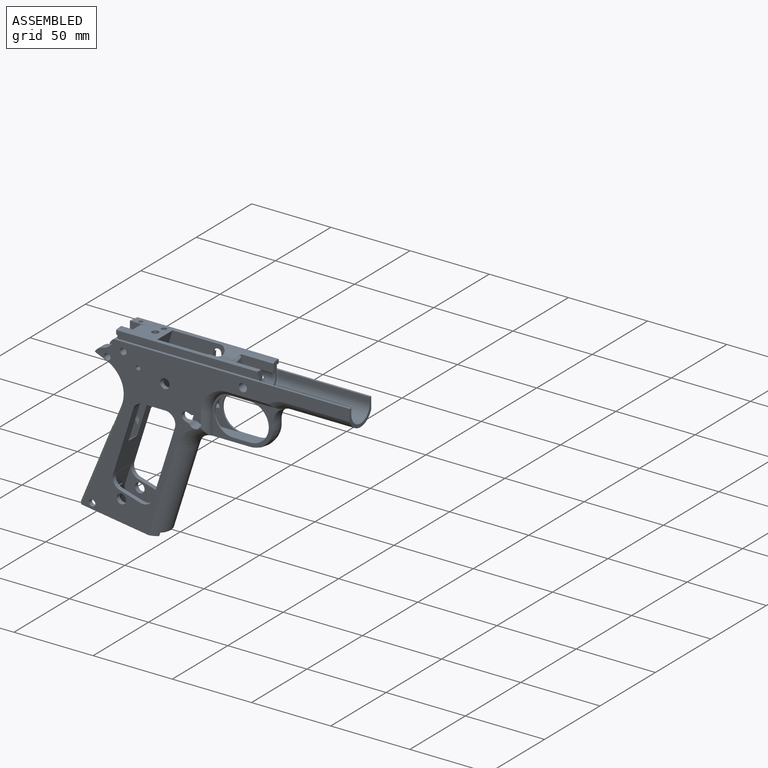
[diagram: assembled view]
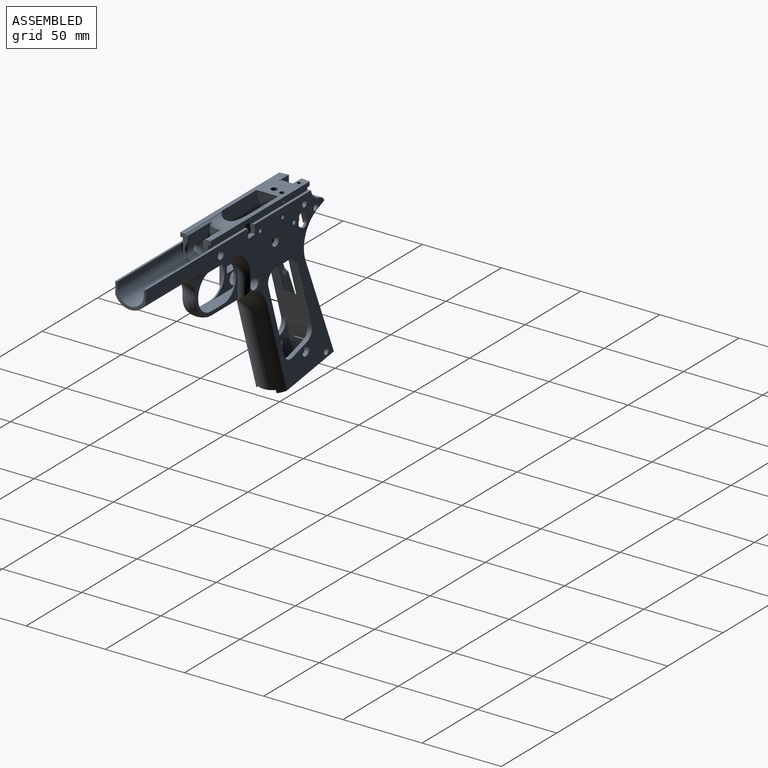
[diagram: assembled view, second angle]
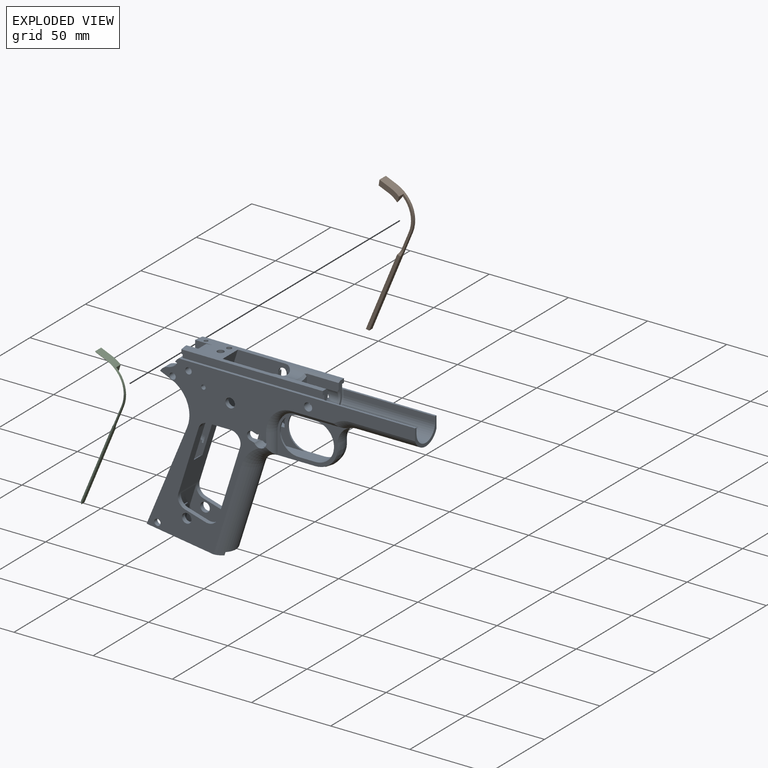
[diagram: exploded view]
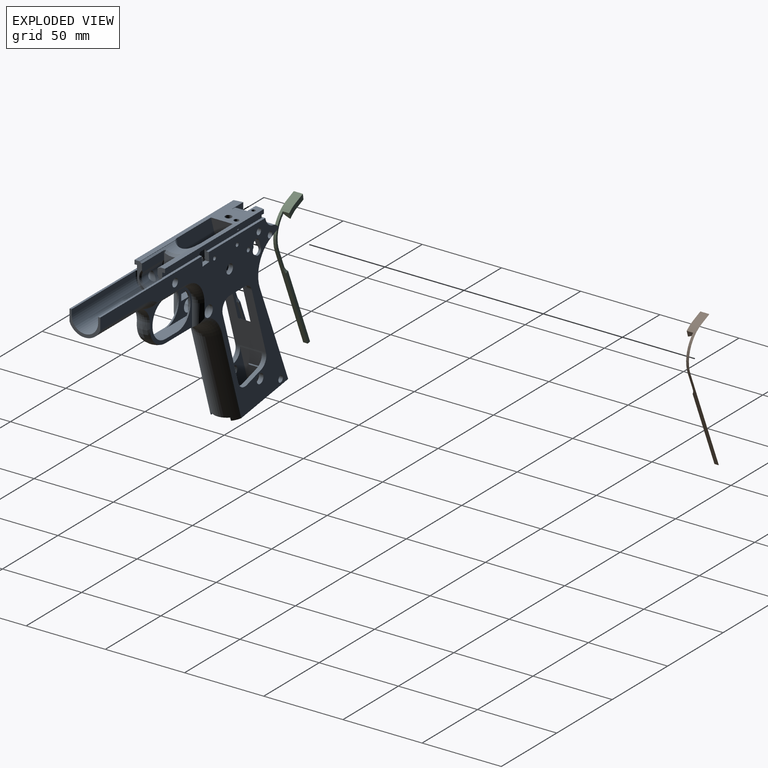
[diagram: exploded view, second angle]
ASSEMBLY  parts=3 mates=2
PART A: 207 faces, bbox 169.7x21.1x114.2 mm
  f0: plane 16.49x7.6mm, normal (1,0,0), area 34mm2, adj f1,f2,f60,f70,f110,f135,f136,f140
  f1: plane 90.1x19.31mm, normal (0,0,1), area 755.1mm2, adj f0,f3,f16,f17,f90,f92,f114,f115
  f2: plane 89.53x1.56mm, normal (0,0,-1), area 139.6mm2, adj f0,f3,f110,f206
  f3: cylinder r=50.8mm len=5.6mm, axis (0,0,1), area 26.7mm2, adj f1,f2,f17,f70,f110,f206
  f4: plane 47.99x22.35mm, normal (0,1,0), area 239mm2, adj f40,f63,f108,f181,f195
  f5: plane 47.63x21.1mm, normal (0,1,0), area 65.4mm2, adj f13,f63,f183,f195
  f6: plane 47.99x22.35mm, normal (0,-1,0), area 239mm2, adj f40,f63,f74,f179,f199
  f7: plane 47.63x21.1mm, normal (0,-1,0), area 65.4mm2, adj f11,f63,f177,f199
  f8: cylinder r=19.05mm len=24.85mm, axis (0,1,0), area 77.7mm2, adj f13,f17,f34,f55,f196,f197
  f9: cylinder r=1.4mm len=5.74mm, axis (0,1,0), area 46.8mm2, adj f17,f34,f198
  f10: cylinder r=19.05mm len=24.85mm, axis (0,1,0), area 77mm2, adj f11,f16,f24,f26,f29,f95,f175,f200
  f11: plane 61.79x25.6mm, normal (-0.92,0,0.38), area 171.6mm2, adj f7,f10,f29,f63,f199,f200
  f12: cylinder r=2.67mm len=4.76mm, axis (0,1,0), area 11.4mm2, adj f24,f29,f35,f113,f175,f204
  f13: plane 61.79x25.6mm, normal (-0.92,0,0.38), area 171.6mm2, adj f5,f8,f34,f63,f195,f196
  f14: cylinder r=1.4mm len=5.74mm, axis (0,1,0), area 46.8mm2, adj f16,f29,f202
  f15: cylinder r=2.67mm len=5.74mm, axis (0,1,0), area 33.5mm2, adj f16,f29,f35,f113,f175,f176,f204
  f16: plane 32.55x28.59mm, normal (0,-1,0), area 322.8mm2, adj f1,f10,f14,f15,f22,f25,f51,f73
  f17: plane 32.55x28.59mm, normal (0,1,0), area 333.1mm2, adj f1,f3,f8,f9,f18,f41,f51,f53
  f18: plane 48.79x5.1mm, normal (0,0,-1), area 77.3mm2, adj f17,f20,f41,f48,f114,f115,f116,f151
  f19: plane 48.79x5.1mm, normal (0,0,1), area 86.2mm2, adj f20,f40,f42,f44,f45,f48,f50,f151
  f20: plane 5.92x0.19mm, normal (1,0,0), area 1.1mm2, adj f18,f19,f153,f196
  f21: plane 48.83x5.14mm, normal (0,0,1), area 87.5mm2, adj f23,f39,f40,f43,f46,f47,f49,f155
  f22: plane 47.76x5.14mm, normal (0,0,-1), area 78.4mm2, adj f16,f25,f47,f73,f114,f116,f117,f155
  f23: plane 5.35x0.19mm, normal (1,0,0), area 1mm2, adj f21,f26,f156,f200
  f24: plane 3.87x1.22mm, normal (0.95,0,-0.3), area 0.8mm2, adj f10,f12,f175,f204,f205
  f25: plane 13.04x4.22mm, normal (-0.95,0,0.3), area 15.7mm2, adj f16,f22,f26,f156,f175,f176,f201,f202
  f26: plane 5.18x1.63mm, normal (0.3,0,0.95), area 0.9mm2, adj f10,f23,f25,f156,f175,f200
  f27: torus R=24.64mm, axis (0,-1,0), area 482.7mm2, adj f28,f29,f31,f33,f34,f130,f165,f186
  f28: cylinder r=10.41mm len=23.03mm, axis (-1,0,0), area 194.9mm2, adj f27,f129,f188,f190
  f29: plane 169.51x105.97mm, normal (0,1,0), area 3951.9mm2, adj f10,f11,f12,f14,f15,f27,f35,f62
  f30: cylinder r=11.73mm len=23.47mm, axis (0,1,0), area 34.7mm2, adj f47,f66,f96,f190,f192
  f31: cylinder r=3.98mm len=7.95mm, axis (0,1,0), area 108mm2, adj f27,f33,f34,f39,f45,f48,f159,f160
  f32: cylinder r=11.73mm len=23.47mm, axis (0,1,0), area 34.7mm2, adj f48,f66,f96,f188,f189
  f33: plane 1.82x1.07mm, normal (0,-1,0), area 0.6mm2, adj f27,f31,f186
  f34: plane 169.51x105.97mm, normal (0,-1,0), area 4020.2mm2, adj f8,f9,f13,f27,f31,f52,f53,f54
  f35: cylinder r=3.2mm len=5.24mm, axis (0,1,0), area 10.3mm2, adj f12,f15,f29,f175
  f36: plane 1.36x1.2mm, normal (0,-1,0), area 0.8mm2, adj f131,f133,f174
  f37: plane 1.37x1.21mm, normal (0,1,0), area 0.8mm2, adj f131,f133,f174
  f38: plane 89.53x1.7mm, normal (0,0,-1), area 152.1mm2, adj f89,f90,f92,f170
  f39: extruded ~78.69x31.26mm, area 1461.8mm2, adj f21,f31,f44,f46,f47,f48,f63,f64
  f40: plane 72.36x22.68mm, normal (-0.95,0,0.3), area 831.2mm2, adj f4,f6,f19,f21,f49,f50,f63,f120
  f41: plane 9.61x4.01mm, normal (-0.95,0,0.3), area 32.7mm2, adj f17,f18,f196,f198
  f42: plane 6.58x2.93mm, normal (0.95,0,-0.3), area 20.2mm2, adj f19,f44,f50,f52
  f43: plane 6.58x2.93mm, normal (0.95,0,-0.3), area 20.2mm2, adj f21,f46,f49,f81
  f44: plane 77.04x54.13mm, normal (0,1,0), area 844.5mm2, adj f19,f39,f42,f45,f52,f63,f72,f75
  f45: extruded ~4.82x3.7mm, area 5.1mm2, adj f19,f31,f44,f48,f159,f161
  f46: plane 76.77x52.2mm, normal (0,-1,0), area 705.1mm2, adj f21,f39,f43,f63,f72,f75,f81,f97
  f47: plane 24.1x23.47mm, normal (0,-1,0), area 186.6mm2, adj f21,f22,f30,f39,f64,f66,f96,f116
  f48: plane 23.96x23.47mm, normal (0,1,0), area 185.2mm2, adj f18,f19,f31,f32,f39,f45,f66,f96
  f49: plane 30.94x11.51mm, normal (0,-1,0), area 53.2mm2, adj f21,f40,f43,f81,f102,f146
  f50: plane 30.94x11.51mm, normal (0,1,0), area 53.2mm2, adj f19,f40,f42,f52,f102,f146
  f51: cylinder r=38.1mm len=15.56mm, axis (0,-1,0), area 120.4mm2, adj f16,f17,f114,f147,f149
  f52: cylinder r=6.35mm len=6.06mm, axis (0,1,0), area 25.6mm2, adj f34,f42,f44,f50,f80,f102
  f53: cylinder r=8.76mm len=7.2mm, axis (0,1,0), area 60.2mm2, adj f17,f34,f54,f70
  f54: cylinder r=6.86mm len=5.74mm, axis (0,1,0), area 35.8mm2, adj f17,f34,f53,f55
  f55: plane 6.87x5.74mm, normal (-0.39,0,-0.92), area 42.8mm2, adj f8,f17,f34,f54
  f56: cylinder r=2mm len=5.74mm, axis (0,1,0), area 72.1mm2, adj f17,f34
  f57: cylinder r=1.98mm len=5.74mm, axis (0,1,0), area 71.4mm2, adj f17,f34
  f58: cylinder r=5.7mm len=18.47mm, axis (-1,0,0), area 342.1mm2, adj f60,f61,f62,f132,f137,f139,f140,f141
  f59: plane 2.77x0.13mm, normal (1,0,0), area 0.2mm2, adj f135,f138
  f60: cone r=5.7mm half-angle=45deg, axis (1,0,0), area 14.5mm2, adj f0,f58,f140,f171
  f61: cylinder r=2.55mm len=6.66mm, axis (0,1,0), area 78.1mm2, adj f34,f58
  f62: cylinder r=2.55mm len=6.66mm, axis (0,1,0), area 78.1mm2, adj f29,f58
  f63: plane 46.88x19.43mm, normal (-0.15,0,-0.99), area 276.8mm2, adj f4,f5,f6,f7,f11,f13,f29,f34
  f64: cylinder r=3.98mm len=7.95mm, axis (0,1,0), area 105.4mm2, adj f39,f47,f167
  f65: cylinder r=11.73mm len=23.47mm, axis (0,1,0), area 303.5mm2, adj f66,f96,f188,f190
  f66: plane 34.87x8.23mm, normal (0,0,1), area 237.9mm2, adj f30,f32,f39,f47,f48,f65,f188,f190
  f67: cylinder r=7.53mm len=2.14mm, axis (0.3,0,0.95), area 0.3mm2, adj f63,f69,f119,f130
  f68: cylinder r=6.53mm len=2.13mm, axis (0.3,0,0.95), area 0.3mm2, adj f63,f69,f118,f130
  f69: plane 12.66x5.64mm, normal (-0.15,0,-0.99), area 23.3mm2, adj f39,f67,f68,f118,f119,f130
  f70: plane 148.88x5.74mm, normal (0,0,1), area 233.9mm2, adj f0,f3,f17,f34,f53,f71,f110,f124
  f71: plane 19.36x14mm, normal (1,0,0), area 66.3mm2, adj f29,f34,f70,f88,f124,f125,f126,f127
  f72: plane 23.43x13.74mm, normal (0.95,0,-0.3), area 330.1mm2, adj f44,f46,f63,f75,f120,f121,f122,f123
  f73: plane 9.61x4.01mm, normal (-0.95,0,0.3), area 32.7mm2, adj f16,f22,f201,f202
  f74: cylinder r=1.99mm len=3.99mm, axis (0,1,0), area 35mm2, adj f6,f29
  f75: cylinder r=6.35mm len=19.35mm, axis (0,1,0), area 70.8mm2, adj f29,f34,f44,f46,f72,f76,f97,f102
  f76: plane 12.94x3.81mm, normal (0.28,0,0.96), area 37.9mm2, adj f34,f44,f75,f77
  f77: cylinder r=6.35mm len=7.85mm, axis (0,1,0), area 27.7mm2, adj f34,f44,f76,f78
  f78: plane 44.45x13.93mm, normal (-0.95,0,0.3), area 130.7mm2, adj f34,f44,f77,f79
  f79: cylinder r=6.35mm len=8.25mm, axis (0,1,0), area 33.4mm2, adj f34,f44,f78,f80
  f80: plane 14.13x2.81mm, normal (0,0,-1), area 39.7mm2, adj f34,f44,f52,f79
  f81: cylinder r=6.35mm len=6.06mm, axis (0,1,0), area 25.6mm2, adj f29,f43,f46,f49,f101,f102
  f82: cylinder r=3mm len=5.99mm, axis (0,1,0), area 52.9mm2, adj f34,f115
  f83: cylinder r=3mm len=5.99mm, axis (0,1,0), area 52.9mm2, adj f34,f44
  f84: plane 5.53x4.9mm, normal (0.07,0,1), area 18.7mm2, adj f29,f85,f111,f116,f117
  f85: cylinder r=0.25mm len=5.07mm, axis (0,1,0), area 2mm2, adj f29,f84,f86,f116
  f86: plane 5.57x5.16mm, normal (-1,0,0.07), area 24.6mm2, adj f29,f85,f87,f116
  f87: cylinder r=3.01mm len=6.01mm, axis (0,1,0), area 13.5mm2, adj f29,f86,f88,f89,f112,f116,f117
  f88: plane 91.9x2.08mm, normal (0,0,1), area 134.3mm2, adj f29,f71,f87,f89,f92,f125,f134
  f89: plane 89.53x3.02mm, normal (0,1,0), area 255.5mm2, adj f38,f87,f88,f91,f92,f112,f168,f170
  f90: plane 89.23x2.54mm, normal (0,1,0), area 226.6mm2, adj f1,f38,f92,f170
  f91: plane 50.96x5.74mm, normal (0,0,1), area 89.4mm2, adj f16,f29,f89,f93,f112,f170
  f92: plane 16.49x7.74mm, normal (1,0,0), area 34.3mm2, adj f1,f38,f88,f89,f90,f132,f134,f135
  f93: cylinder r=8.76mm len=7.2mm, axis (0,1,0), area 60.2mm2, adj f16,f29,f91,f94
  f94: cylinder r=6.86mm len=5.74mm, axis (0,1,0), area 35.8mm2, adj f16,f29,f93,f95
  f95: plane 6.87x5.74mm, normal (-0.39,0,-0.92), area 42.8mm2, adj f10,f16,f29,f94
  f96: plane 27.51x8.23mm, normal (0,0,-1), area 191.2mm2, adj f30,f32,f47,f48,f65,f116,f188,f190
  f97: plane 12.94x3.81mm, normal (0.28,0,0.96), area 37.9mm2, adj f29,f46,f75,f98
  f98: cylinder r=6.35mm len=7.85mm, axis (0,1,0), area 27.7mm2, adj f29,f46,f97,f99
  f99: plane 44.45x13.93mm, normal (-0.95,0,0.3), area 130.7mm2, adj f29,f46,f98,f100
  f100: cylinder r=6.35mm len=8.25mm, axis (0,1,0), area 33.4mm2, adj f29,f46,f99,f101
  f101: plane 14.13x2.81mm, normal (0,0,-1), area 39.7mm2, adj f29,f46,f81,f100
  f102: plane 40.64x19.35mm, normal (0.95,0,-0.3), area 640.7mm2, adj f29,f34,f49,f50,f52,f75,f81,f146
  f103: cylinder r=2mm len=5.74mm, axis (0,1,0), area 72.1mm2, adj f16,f29
  f104: cylinder r=1.25mm len=2.81mm, axis (0,1,0), area 22.1mm2, adj f29,f117
  f105: cylinder r=1.25mm len=2.81mm, axis (0,1,0), area 22.1mm2, adj f29,f117
  f106: cylinder r=1.98mm len=5.74mm, axis (0,1,0), area 71.4mm2, adj f16,f29
  f107: cylinder r=3mm len=5.99mm, axis (0,1,0), area 52.9mm2, adj f29,f117
  f108: cylinder r=1.99mm len=3.99mm, axis (0,1,0), area 35mm2, adj f4,f34
  f109: cylinder r=3mm len=5.99mm, axis (0,1,0), area 52.9mm2, adj f29,f46
  f110: plane 89.53x3.02mm, normal (0,-1,0), area 270.6mm2, adj f0,f2,f3,f70
  f111: cylinder r=0.25mm len=2.81mm, axis (0,1,0), area 1.1mm2, adj f29,f84,f112,f117
  f112: plane 5.49x2.81mm, normal (1,0,-0.07), area 15.4mm2, adj f29,f87,f89,f91,f111,f117
  f113: plane 4.69x4.29mm, normal (0.95,0,-0.31), area 13mm2, adj f12,f15,f29,f204
  f114: plane 28.59x13.74mm, normal (0.95,0,-0.3), area 306.7mm2, adj f1,f16,f17,f18,f22,f51,f115,f117
  f115: plane 40.34x28.59mm, normal (0,1,0), area 868.8mm2, adj f1,f18,f82,f114,f116
  f116: extruded ~30.12x16.03mm, area 489.3mm2, adj f1,f18,f22,f47,f48,f84,f85,f86
  f117: plane 38.4x28.59mm, normal (0,-1,0), area 790.1mm2, adj f1,f22,f84,f87,f104,f105,f107,f111
  f118: plane 4.06x2.59mm, normal (0,-1,0), area 7.4mm2, adj f39,f63,f68,f69
  f119: plane 3.53x2.51mm, normal (0,1,0), area 6.3mm2, adj f39,f63,f67,f69
  f120: cylinder r=6.7mm len=2.04mm, axis (-0.3,0,-0.95), area 2.6mm2, adj f40,f72,f122,f123
  f121: cylinder r=6.7mm len=2.04mm, axis (-0.3,0,-0.95), area 2.6mm2, adj f40,f72,f122,f123
  f122: plane 10.95x1.77mm, normal (-0.15,0,-0.99), area 16.3mm2, adj f40,f72,f120,f121
  f123: plane 10.95x1.77mm, normal (0.15,0,0.99), area 16.3mm2, adj f40,f72,f120,f121
  f124: plane 57.66x3.58mm, normal (0,1,0), area 206.5mm2, adj f70,f71,f126,f136
  f125: plane 57.66x3.58mm, normal (0,-1,0), area 206.5mm2, adj f71,f88,f126,f134
  f126: cylinder r=8.36mm len=57.66mm, axis (1,0,0), area 1513.7mm2, adj f71,f124,f125,f135
  f127: cylinder r=10.41mm len=40.74mm, axis (1,0,0), area 1011.8mm2, adj f29,f34,f71,f128
  f128: torus R=21.59mm, axis (0,-1,0), area 299.5mm2, adj f29,f34,f127,f129,f187,f188,f190,f194
  f129: torus R=4.57mm, axis (0,1,0), area 206.2mm2, adj f28,f128,f188,f190
  f130: cylinder r=10.41mm len=57.55mm, axis (-0.3,0,-0.95), area 1401.1mm2, adj f27,f29,f34,f63,f67,f68,f69
  f131: plane 13.17x9.88mm, normal (1,0,0), area 99mm2, adj f36,f37,f133,f137,f171,f172,f174
  f132: cone r=5.7mm half-angle=45deg, axis (1,0,0), area 14.5mm2, adj f58,f92,f139,f172
  f133: cone r=10.36mm half-angle=45deg, axis (1,0,0), area 18.5mm2, adj f36,f37,f131,f174
  f134: cylinder r=0.76mm len=3.58mm, axis (0,0,-1), area 4.3mm2, adj f88,f92,f125,f135
  f135: torus R=7.59mm, axis (-1,0,0), area 30.3mm2, adj f0,f59,f92,f126,f134,f136,f138,f139
  f136: cylinder r=0.76mm len=3.58mm, axis (0,0,1), area 4.3mm2, adj f0,f70,f124,f135
  f137: torus R=4.94mm, axis (1,0,0), area 25.9mm2, adj f58,f131,f171,f172
  f138: plane 14.84x3.89mm, normal (0,0,1), area 55.9mm2, adj f59,f135,f139,f140,f141
  f139: plane 12.91x2.13mm, normal (0,-1,0), area 26.7mm2, adj f58,f92,f132,f135,f138,f141
  f140: plane 12.91x2.13mm, normal (0,1,0), area 26.7mm2, adj f0,f58,f60,f135,f138,f141
  f141: cylinder r=1.94mm len=3.88mm, axis (0,0,1), area 11.8mm2, adj f58,f138,f139,f140
  f142: cylinder r=1.58mm len=8.38mm, axis (0,0,1), area 81.3mm2, adj f1,f143,f168,f169
  f143: plane 3.16x3.16mm, normal (0,0,1), area 7.9mm2, adj f142
  f144: cylinder r=1.23mm len=3.18mm, axis (0,0,1), area 24.4mm2, adj f1,f145
  f145: plane 2.45x2.45mm, normal (0,0,1), area 4.7mm2, adj f144
  f146: cylinder r=38.1mm len=7.87mm, axis (0,-1,0), area 18.8mm2, adj f40,f49,f50,f102
  f147: plane 7.87x3.58mm, normal (-0.09,0,1), area 28.3mm2, adj f1,f16,f17,f51
  f148: cylinder r=2.08mm len=6.45mm, axis (-0.1,0,-0.99), area 76.2mm2, adj f1,f150
  f149: cylinder r=2.79mm len=10.39mm, axis (0.1,0,0.99), area 105.4mm2, adj f51,f114,f150
  f150: plane 5.59x5.56mm, normal (-0.1,0,-0.99), area 10.9mm2, adj f148,f149
  f151: plane 17.78x5.92mm, normal (0,1,0), area 105.2mm2, adj f18,f19,f152,f154
  f152: cylinder r=6.86mm len=5.92mm, axis (0,0,1), area 2.5mm2, adj f18,f19,f151,f153
  f153: plane 23.88x5.92mm, normal (0,1,0), area 141.3mm2, adj f18,f19,f20,f152
  f154: cylinder r=6.86mm len=6.6mm, axis (0,0,1), area 52.5mm2, adj f18,f19,f48,f151
  f155: cylinder r=6.86mm len=6.6mm, axis (0,0,1), area 52.5mm2, adj f21,f22,f47,f158
  f156: plane 23.88x5.92mm, normal (0,-1,0), area 140.6mm2, adj f21,f22,f23,f25,f26,f157
  f157: cylinder r=6.86mm len=5.92mm, axis (0,0,1), area 2.5mm2, adj f21,f22,f156,f158
  f158: plane 17.78x5.92mm, normal (0,-1,0), area 105.2mm2, adj f21,f22,f155,f157
  f159: plane 4.99x2.8mm, normal (-0.3,0,-0.95), area 10.9mm2, adj f31,f34,f45,f161
  f160: plane 4.98x2.8mm, normal (0.3,0,0.95), area 10.9mm2, adj f31,f34,f39,f161
  f161: cylinder r=2.74mm len=5.36mm, axis (0,-1,0), area 24.3mm2, adj f34,f39,f44,f45,f159,f160
  f162: cylinder r=3.81mm len=7.57mm, axis (0,-1,0), area 16.6mm2, adj f31,f163,f164
  f163: plane 7.57x5.48mm, normal (0,-1,0), area 12.1mm2, adj f31,f162
  f164: plane 7.57x5.48mm, normal (0,1,0), area 12.1mm2, adj f31,f162
  f165: cylinder r=3.98mm len=3.17mm, axis (0,-1,0), area 0.4mm2, adj f27,f29
  f166: cylinder r=3.64mm len=7.29mm, axis (0,-1,0), area 39.6mm2, adj f29,f167
  f167: plane 7.95x7.95mm, normal (0,-1,0), area 7.9mm2, adj f64,f166
  f168: cylinder r=0.79mm len=1.91mm, axis (0,1,0), area 7.3mm2, adj f89,f142,f169
  f169: plane 1.59x0.82mm, normal (0,1,0), area 1mm2, adj f142,f168
  f170: cylinder r=50.8mm len=5.74mm, axis (0,0,1), area 27mm2, adj f1,f16,f38,f89,f90,f91
  f171: plane 20.24x7.85mm, normal (0,1,0), area 107mm2, adj f0,f58,f60,f131,f137,f174
  f172: plane 20.24x7.84mm, normal (0,-1,0), area 106.9mm2, adj f58,f92,f131,f132,f137,f174
  f173: plane 32.07x0.21mm, normal (0,1,0), area 6.8mm2, adj f0,f1,f116,f174
  f174: cylinder r=11.63mm len=33.4mm, axis (1,0,0), area 188mm2, adj f0,f1,f36,f37,f92,f116,f131,f133
  f175: plane 14.51x10.97mm, normal (0,-1,0), area 50mm2, adj f10,f12,f15,f24,f25,f26,f35,f176
  f176: plane 4.22x4.11mm, normal (-0.34,0,-0.94), area 18.4mm2, adj f15,f16,f25,f175
  f177: plane 48.01x20.38mm, normal (0.92,0,-0.39), area 55.4mm2, adj f7,f63,f178,f180,f199
  f178: plane 1.9x0.81mm, normal (-0.39,0,-0.92), area 1.3mm2, adj f177,f179,f180,f199
  f179: plane 47.51x20.17mm, normal (-0.92,0,0.39), area 54.9mm2, adj f6,f63,f178,f180,f199
  f180: plane 48.32x22.27mm, normal (0,-1,0), area 106.7mm2, adj f63,f177,f178,f179
  f181: plane 47.51x20.17mm, normal (-0.92,0,0.39), area 54.9mm2, adj f4,f63,f182,f184,f195
  f182: plane 1.9x0.81mm, normal (-0.39,0,-0.92), area 1.3mm2, adj f181,f183,f184,f195
  f183: plane 48.01x20.38mm, normal (0.92,0,-0.39), area 55.4mm2, adj f5,f63,f182,f184,f195
  f184: plane 48.32x22.27mm, normal (0,1,0), area 106.7mm2, adj f63,f181,f182,f183
  f185: torus R=19.52mm, axis (0,-1,0), area 152.3mm2, adj f34,f186,f187,f189
  f186: cylinder r=6.35mm len=14.17mm, axis (0,0,-1), area 80.2mm2, adj f27,f31,f33,f34,f185,f188
  f187: cylinder r=6.35mm len=31.78mm, axis (1,0,0), area 196.4mm2, adj f34,f128,f185,f188
  f188: plane 44.95x27.33mm, normal (0,-1,0), area 266.5mm2, adj f27,f28,f32,f65,f66,f96,f128,f129
  f189: plane 13.17x13.17mm, normal (0,-1,0), area 28.1mm2, adj f32,f185,f188
  f190: plane 44.95x27.33mm, normal (0,1,0), area 266.5mm2, adj f27,f28,f30,f65,f66,f96,f128,f129
  f191: cylinder r=6.35mm len=14.17mm, axis (0,0,-1), area 80.4mm2, adj f27,f29,f190,f193
  f192: plane 13.17x13.17mm, normal (0,1,0), area 28.1mm2, adj f30,f190,f193
  f193: torus R=19.52mm, axis (0,-1,0), area 152.3mm2, adj f29,f191,f192,f194
  f194: cylinder r=6.35mm len=31.78mm, axis (1,0,0), area 196.4mm2, adj f29,f128,f190,f193
  f195: cylinder r=6.76mm len=6.95mm, axis (0.95,0,-0.3), area 21.1mm2, adj f4,f5,f13,f40,f181,f182,f183,f196
  f196: plane 35.47x15.42mm, normal (0,1,0), area 199.7mm2, adj f8,f13,f18,f19,f20,f40,f41,f195
  f197: plane 7.86x4.01mm, normal (0.95,0,-0.3), area 25.3mm2, adj f8,f17,f196,f198
  f198: cylinder r=7.62mm len=16.97mm, axis (0.95,0,-0.3), area 125.1mm2, adj f9,f17,f41,f196,f197
  f199: cylinder r=6.76mm len=6.95mm, axis (0.95,0,-0.3), area 21.1mm2, adj f6,f7,f11,f40,f177,f178,f179,f200
  f200: plane 28.39x12.33mm, normal (0,-1,0), area 132.4mm2, adj f10,f11,f21,f23,f26,f40,f199
  f201: plane 5.75x4.56mm, normal (0,-1,0), area 18.4mm2, adj f22,f25,f73,f202
  f202: cylinder r=7.62mm len=7.76mm, axis (0.95,0,-0.3), area 33.4mm2, adj f14,f16,f25,f73,f201
  f203: plane 7.86x4.01mm, normal (0.95,0,-0.3), area 25.3mm2, adj f10,f16,f204,f205
  f204: cylinder r=7.62mm len=7.47mm, axis (0.95,0,-0.3), area 27.4mm2, adj f12,f15,f16,f24,f113,f203,f205
  f205: plane 4.3x3.59mm, normal (0,-1,0), area 8mm2, adj f10,f24,f203,f204
  f206: plane 89.26x2.54mm, normal (0,-1,0), area 226.7mm2, adj f0,f1,f2,f3
PART B: 13 faces, bbox 29.3x5.8x90.1 mm
  f0: cylinder r=19.05mm len=24.85mm, axis (0,-1,0), area 77.7mm2, adj f1,f3,f6,f9,f10,f11
  f1: revolved ~24.85x12.2mm, area 92.6mm2, adj f0,f2,f7,f9,f10,f11
  f2: cylinder r=13.4mm len=63.1mm, axis (-0.38,0,-0.92), area 218.4mm2, adj f1,f3,f4,f5,f11,f12
  f3: plane 61.79x25.6mm, normal (0.92,0,-0.38), area 171.6mm2, adj f0,f2,f4,f5,f11,f12
  f4: plane 48.12x21.85mm, normal (0,-1,0), area 110.6mm2, adj f2,f3,f5,f12
  f5: plane 2.84x2.23mm, normal (-0.15,0,-0.99), area 3.4mm2, adj f2,f3,f4
  f6: plane 6.87x5.74mm, normal (0.39,0,0.92), area 42.8mm2, adj f0,f7,f8,f10
  f7: extruded ~7.4x6.36mm, area 50.3mm2, adj f1,f6,f8,f10
  f8: plane 5.74x3.48mm, normal (-0.99,0,0.15), area 12mm2, adj f6,f7,f10
  f9: plane 4.06x3.7mm, normal (0.95,0,-0.3), area 11.5mm2, adj f0,f1,f10,f11
  f10: plane 12.87x10.04mm, normal (0,-1,0), area 46.8mm2, adj f0,f1,f6,f7,f8,f9
  f11: plane 32.28x7.37mm, normal (0,-1,0), area 49.5mm2, adj f0,f1,f2,f3,f9,f12
  f12: cylinder r=6.76mm len=4.22mm, axis (0.95,0,-0.3), area 7mm2, adj f2,f3,f4,f11
PART C: 13 faces, bbox 29.3x5.8x90.1 mm
  f0: plane 61.79x25.6mm, normal (0.92,0,-0.38), area 171.6mm2, adj f1,f2,f4,f5,f11,f12
  f1: cylinder r=13.4mm len=63.1mm, axis (-0.38,0,-0.92), area 218.4mm2, adj f0,f2,f3,f5,f11,f12
  f2: plane 48.12x21.85mm, normal (0,1,0), area 110.6mm2, adj f0,f1,f5,f11
  f3: revolved ~24.85x12.2mm, area 92.6mm2, adj f1,f4,f7,f9,f10,f12
  f4: cylinder r=19.05mm len=24.85mm, axis (0,-1,0), area 77.7mm2, adj f0,f3,f8,f9,f10,f12
  f5: plane 2.84x2.23mm, normal (-0.15,0,-0.99), area 3.4mm2, adj f0,f1,f2
  f6: plane 5.74x3.48mm, normal (-0.99,0,0.15), area 12mm2, adj f7,f8,f10
  f7: extruded ~7.4x6.36mm, area 50.3mm2, adj f3,f6,f8,f10
  f8: plane 6.87x5.74mm, normal (0.39,0,0.92), area 42.8mm2, adj f4,f6,f7,f10
  f9: plane 4.06x3.71mm, normal (0.95,0,-0.3), area 11.5mm2, adj f3,f4,f10,f12
  f10: plane 12.87x10.04mm, normal (0,1,0), area 46.8mm2, adj f3,f4,f6,f7,f8,f9
  f11: cylinder r=6.76mm len=4.22mm, axis (0.95,0,-0.3), area 7mm2, adj f0,f1,f2,f12
  f12: plane 32.28x7.37mm, normal (0,1,0), area 49.5mm2, adj f0,f1,f3,f4,f9,f11
PLACE A at identity fixed
PLACE B at identity
PLACE C at identity
MATE fastened B.f0 <-> A.f8  axis (0,-1,0) through (-40.92,0,76.29)mm
MATE fastened C.f4 <-> A.f8  axis (0,-1,0) through (-40.92,-19.35,76.29)mm
